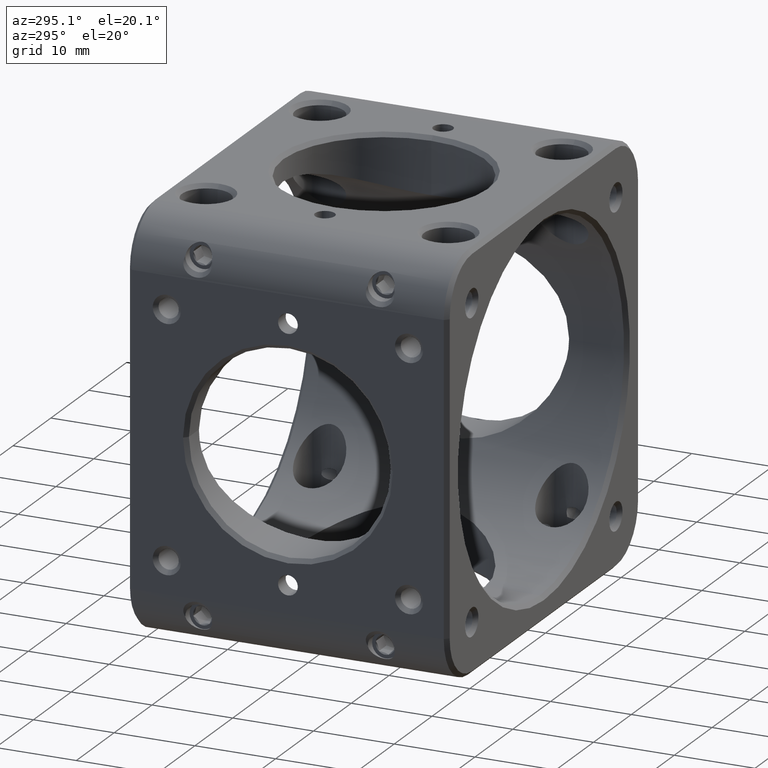
[diagram: clean part render]
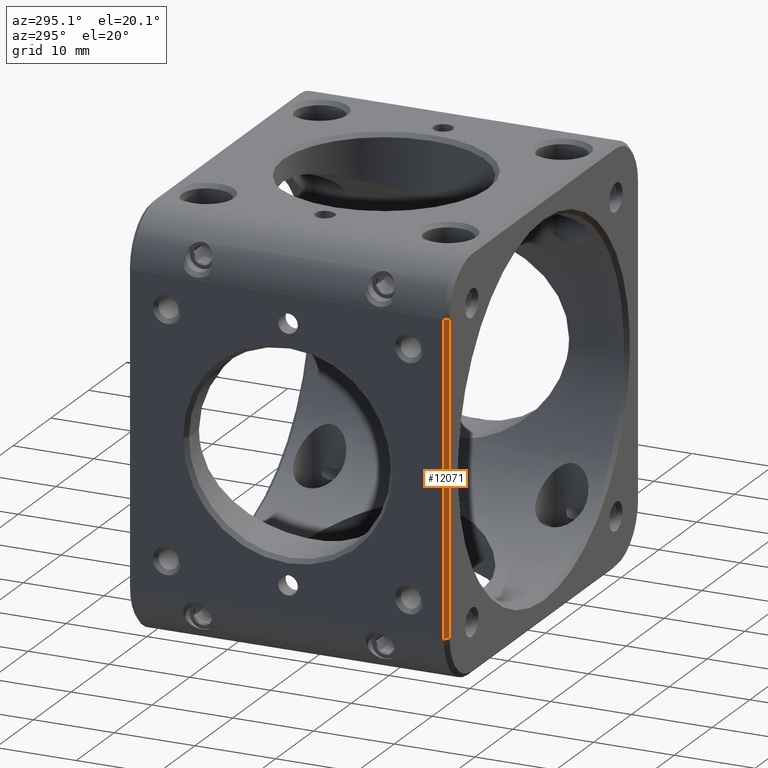
[diagram: same view with one face highlighted and labeled with its STEP entity id]
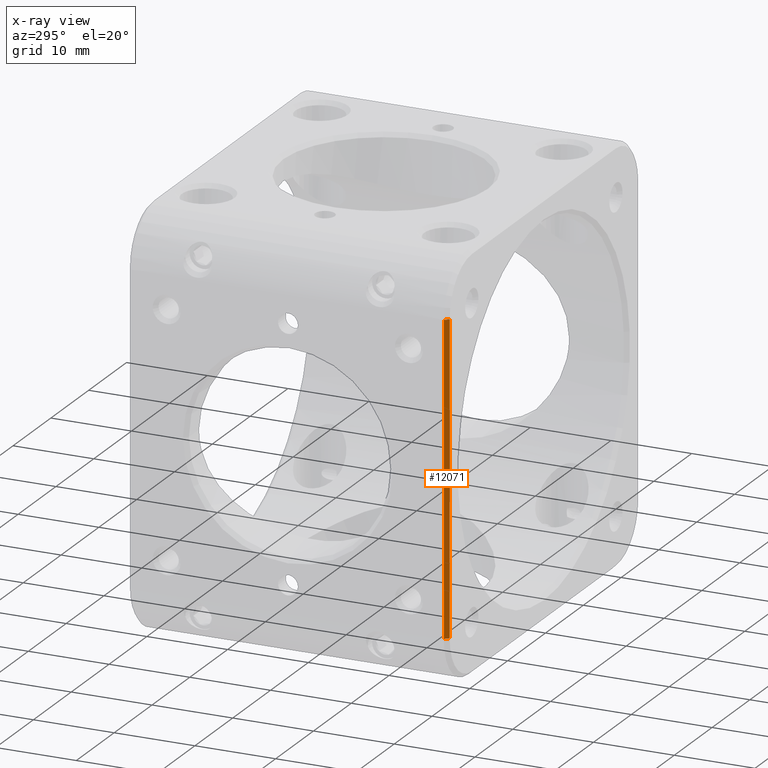
[diagram: x-ray of the same camera — body ghosted, the highlighted face saturated]
A machine part, auxiliary view. The second image highlights one B-rep face of the part: STEP entity #12071.
The next image is the same camera in x-ray: the body ghosted, the highlighted face saturated — about 0% of this face is hidden behind the body in this view.
In plain terms, the highlighted planar face has unit normal (0.7071, 0.7071, 0).
Its self-contained STEP definition (entity closure, byte-faithful):
#1131 = CARTESIAN_POINT ( 'NONE',  ( -25.39999999999997726, -19.30000000000001137, 19.04999999999999716 ) ) ;
#1264 = PLANE ( 'NONE',  #3919 ) ;
#1440 = VERTEX_POINT ( 'NONE', #1131 ) ;
#1513 = DIRECTION ( 'NONE',  ( 0.000000000000000000, 0.000000000000000000, -1.000000000000000000 ) ) ;
#1536 = CARTESIAN_POINT ( 'NONE',  ( -24.89999999999997726, -19.80000000000001137, 19.04999999999999716 ) ) ;
#1654 = ORIENTED_EDGE ( 'NONE', *, *, #14037, .F. ) ;
#2696 = VERTEX_POINT ( 'NONE', #1536 ) ;
#3273 = VERTEX_POINT ( 'NONE', #5619 ) ;
#3596 = LINE ( 'NONE', #7913, #10302 ) ;
#3919 = AXIS2_PLACEMENT_3D ( 'NONE', #17169, #14458, #11951 ) ;
#4618 = LINE ( 'NONE', #5283, #14260 ) ;
#5021 = VERTEX_POINT ( 'NONE', #5286 ) ;
#5283 = CARTESIAN_POINT ( 'NONE',  ( -25.39999999999997726, -19.30000000000001137, -19.04999999999999716 ) ) ;
#5286 = CARTESIAN_POINT ( 'NONE',  ( -25.39999999999997726, -19.30000000000001137, -19.04999999999999716 ) ) ;
#5299 = DIRECTION ( 'NONE',  ( 0.000000000000000000, 0.000000000000000000, 1.000000000000000000 ) ) ;
#5619 = CARTESIAN_POINT ( 'NONE',  ( -24.89999999999997726, -19.80000000000001137, -19.04999999999999716 ) ) ;
#5843 = ORIENTED_EDGE ( 'NONE', *, *, #8868, .T. ) ;
#6179 = EDGE_LOOP ( 'NONE', ( #5843, #1654, #7686, #9023 ) ) ;
#6359 = VECTOR ( 'NONE', #12725, 1000.000000000000114 ) ;
#7686 = ORIENTED_EDGE ( 'NONE', *, *, #7716, .F. ) ;
#7716 = EDGE_CURVE ( 'NONE', #1440, #2696, #8224, .T. ) ;
#7913 = CARTESIAN_POINT ( 'NONE',  ( -25.39999999999997726, -19.30000000000001137, 25.39999999999999858 ) ) ;
#8224 = LINE ( 'NONE', #14055, #6359 ) ;
#8707 = VECTOR ( 'NONE', #1513, 1000.000000000000000 ) ;
#8868 = EDGE_CURVE ( 'NONE', #5021, #3273, #4618, .T. ) ;
#9023 = ORIENTED_EDGE ( 'NONE', *, *, #10087, .F. ) ;
#10087 = EDGE_CURVE ( 'NONE', #5021, #1440, #3596, .T. ) ;
#10302 = VECTOR ( 'NONE', #5299, 1000.000000000000000 ) ;
#11951 = DIRECTION ( 'NONE',  ( -0.000000000000000000, 0.000000000000000000, -1.000000000000000000 ) ) ;
#12043 = DIRECTION ( 'NONE',  ( 0.7071067811865474617, -0.7071067811865474617, 0.000000000000000000 ) ) ;
#12071 = ADVANCED_FACE ( 'NONE', ( #14582 ), #1264, .F. ) ;
#12725 = DIRECTION ( 'NONE',  ( 0.7071067811865474617, -0.7071067811865474617, 0.000000000000000000 ) ) ;
#13774 = LINE ( 'NONE', #14911, #8707 ) ;
#14037 = EDGE_CURVE ( 'NONE', #2696, #3273, #13774, .T. ) ;
#14055 = CARTESIAN_POINT ( 'NONE',  ( -25.39999999999997726, -19.30000000000001137, 19.04999999999999716 ) ) ;
#14260 = VECTOR ( 'NONE', #12043, 1000.000000000000114 ) ;
#14458 = DIRECTION ( 'NONE',  ( 0.7071067811865475727, 0.7071067811865475727, 0.000000000000000000 ) ) ;
#14582 = FACE_OUTER_BOUND ( 'NONE', #6179, .T. ) ;
#14911 = CARTESIAN_POINT ( 'NONE',  ( -24.89999999999997726, -19.80000000000001137, 25.39999999999999858 ) ) ;
#17169 = CARTESIAN_POINT ( 'NONE',  ( -24.89999999999997726, -19.80000000000001137, 25.39999999999999858 ) ) ;